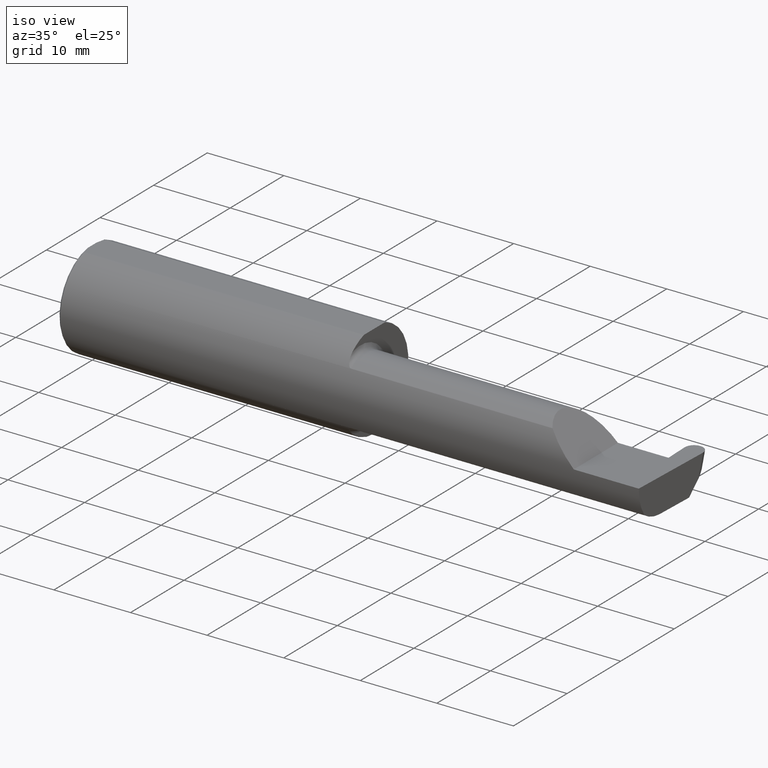
[diagram: clean part render]
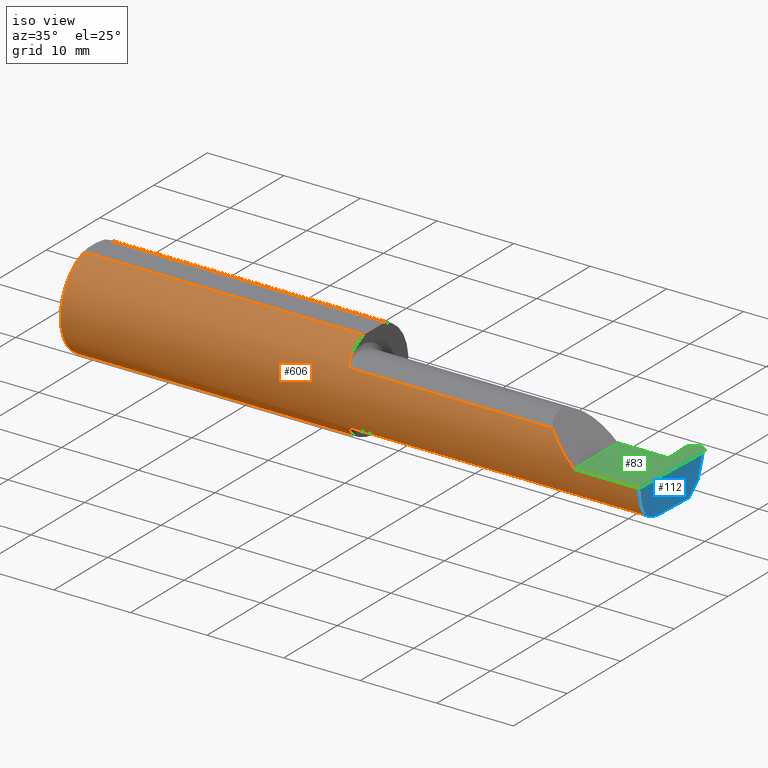
[diagram: same view with three faces highlighted in distinct colors, each labeled with its STEP entity id]
A machine part, iso view with three faces highlighted in distinct colors.
Their STEP definitions:

[orange] entity #606 — the highlighted cylindrical surface (partial cylindrical patch) has radius 6.3462 mm, axis along (-1, -0, -0).
#12 = ORIENTED_EDGE ( 'NONE', *, *, #587, .F. ) ;
#18 = CARTESIAN_POINT ( 'NONE',  ( 2.511704467739031887, -0.2080850024789287211, 0.1382955322609671911 ) ) ;
#21 = ORIENTED_EDGE ( 'NONE', *, *, #38, .F. ) ;
#25 = LINE ( 'NONE', #464, #70 ) ;
#28 = CARTESIAN_POINT ( 'NONE',  ( 1.458182335268384699, -0.1972192205116130581, 0.1535061413537211483 ) ) ;
#34 = CARTESIAN_POINT ( 'NONE',  ( 1.468876997637615034, -0.2068363917296599241, 0.1401586554522231964 ) ) ;
#37 = CARTESIAN_POINT ( 'NONE',  ( 1.452968662030528879, -0.1849684355203377317, 0.1680843977756269203 ) ) ;
#38 = EDGE_CURVE ( 'NONE', #536, #81, #191, .T. ) ;
#42 = CARTESIAN_POINT ( 'NONE',  ( 1.450000000000000178, -0.07650098038587530014, 0.2378499999999998671 ) ) ;
#48 = EDGE_CURVE ( 'NONE', #122, #702, #225, .T. ) ;
#50 = CARTESIAN_POINT ( 'NONE',  ( 2.511704467739031887, -0.2080850024789287211, 0.1382955322609671911 ) ) ;
#55 = DIRECTION ( 'NONE',  ( 0.000000000000000000, 0.000000000000000000, -1.000000000000000000 ) ) ;
#70 = VECTOR ( 'NONE', #566, 39.37007874015748143 ) ;
#73 = AXIS2_PLACEMENT_3D ( 'NONE', #370, #316, #89 ) ;
#78 = VERTEX_POINT ( 'NONE', #421 ) ;
#81 = VERTEX_POINT ( 'NONE', #484 ) ;
#85 = AXIS2_PLACEMENT_3D ( 'NONE', #646, #271, #55 ) ;
#86 = CARTESIAN_POINT ( 'NONE',  ( 1.451849548162864600, -0.1805300287242672663, 0.1728462070311781174 ) ) ;
#89 = DIRECTION ( 'NONE',  ( 0.000000000000000000, 0.000000000000000000, 1.000000000000000000 ) ) ;
#92 = EDGE_CURVE ( 'NONE', #351, #78, #182, .T. ) ;
#93 = CARTESIAN_POINT ( 'NONE',  ( 1.456159563508734101, -0.1933019864360847606, 0.1584298865564833514 ) ) ;
#97 = VERTEX_POINT ( 'NONE', #106 ) ;
#106 = CARTESIAN_POINT ( 'NONE',  ( 2.983360130692194634, -0.2080850024789288044, -0.1382955322609671633 ) ) ;
#114 = CARTESIAN_POINT ( 'NONE',  ( 2.190421435000000194, -0.2080850024789288044, -0.1382955322609671633 ) ) ;
#116 = CARTESIAN_POINT ( 'NONE',  ( 2.650000000000000355, -0.2498499999999999610, 4.286263797015729199E-17 ) ) ;
#122 = VERTEX_POINT ( 'NONE', #594 ) ;
#124 = VERTEX_POINT ( 'NONE', #42 ) ;
#125 = DIRECTION ( 'NONE',  ( 1.000000000000000000, 0.000000000000000000, 0.000000000000000000 ) ) ;
#126 = CARTESIAN_POINT ( 'NONE',  ( 1.471700027347579098, -0.2077785947292767055, -0.1387580622202827518 ) ) ;
#131 = EDGE_CURVE ( 'NONE', #351, #124, #281, .T. ) ;
#132 = VECTOR ( 'NONE', #405, 39.37007874015748143 ) ;
#144 = CARTESIAN_POINT ( 'NONE',  ( 1.450000000000000178, 0.000000000000000000, 0.000000000000000000 ) ) ;
#148 = DIRECTION ( 'NONE',  ( 0.000000000000000000, 1.000000000000000000, 0.000000000000000000 ) ) ;
#152 = ORIENTED_EDGE ( 'NONE', *, *, #347, .T. ) ;
#166 = ORIENTED_EDGE ( 'NONE', *, *, #626, .T. ) ;
#167 = CARTESIAN_POINT ( 'NONE',  ( 1.450000000000000178, -0.1616050818046603221, -0.1905487340154980724 ) ) ;
#178 = CARTESIAN_POINT ( 'NONE',  ( 1.467611663768900510, -0.2061921161193828456, -0.1411075319999379185 ) ) ;
#180 = LINE ( 'NONE', #344, #132 ) ;
#182 = CIRCLE ( 'NONE', #85, 0.2498499999999999888 ) ;
#188 = CARTESIAN_POINT ( 'NONE',  ( 1.467647060162628359, -0.2062109266231180460, 0.1410799729252292800 ) ) ;
#191 = LINE ( 'NONE', #529, #249 ) ;
#196 = CYLINDRICAL_SURFACE ( 'NONE', #73, 0.2498499999999999888 ) ;
#197 = EDGE_CURVE ( 'NONE', #97, #384, #589, .T. ) ;
#199 = CARTESIAN_POINT ( 'NONE',  ( 2.650000000000000355, -0.2498499999999999610, 4.286263797015729199E-17 ) ) ;
#205 = DIRECTION ( 'NONE',  ( 1.000000000000000000, 0.000000000000000000, 0.000000000000000000 ) ) ;
#210 = ORIENTED_EDGE ( 'NONE', *, *, #488, .T. ) ;
#225 = B_SPLINE_CURVE_WITH_KNOTS ( 'NONE', 3,
 ( #411, #579, #522, #86, #37, #93, #28, #254, #415, #188, #34, #689, #633, #259 ),
 .UNSPECIFIED., .F., .F.,
 ( 4, 2, 2, 2, 2, 2, 4 ),
 ( 0.0003834465838148137275, 0.0008781406165086571864, 0.001372834649202500645, 0.001867528681896344104, 0.002114875698243270496, 0.002238549206416740739, 0.002362222714590210982 ),
 .UNSPECIFIED. ) ;
#237 = CARTESIAN_POINT ( 'NONE',  ( 1.458176740666625282, -0.1972027065478072216, -0.1535263573771915302 ) ) ;
#249 = VECTOR ( 'NONE', #367, 39.37007874015748143 ) ;
#254 = CARTESIAN_POINT ( 'NONE',  ( 1.462616400345755574, -0.2024684335577101868, 0.1464246884265639759 ) ) ;
#258 = CARTESIAN_POINT ( 'NONE',  ( 2.983451391416268805, -0.2498499999999999610, -0.04956584089959722994 ) ) ;
#259 = CARTESIAN_POINT ( 'NONE',  ( 1.474999999999999867, -0.2080850024789288877, 0.1382955322609669691 ) ) ;
#260 = AXIS2_PLACEMENT_3D ( 'NONE', #381, #427, #148 ) ;
#271 = DIRECTION ( 'NONE',  ( 1.000000000000000000, 0.000000000000000000, 0.000000000000000000 ) ) ;
#275 = CARTESIAN_POINT ( 'NONE',  ( 1.474999999999999867, -0.2080850024789288877, -0.1382955322609669691 ) ) ;
#279 = CARTESIAN_POINT ( 'NONE',  ( 2.552984868485331571, -0.2355204011147991605, 0.09701513151466779894 ) ) ;
#281 = LINE ( 'NONE', #599, #645 ) ;
#289 = B_SPLINE_CURVE_WITH_KNOTS ( 'NONE', 3,
 ( #448, #462, #126, #680, #178, #342, #555, #237, #454, #673, #398, #167 ),
 .UNSPECIFIED., .F., .F.,
 ( 4, 2, 2, 2, 2, 4 ),
 ( 1.964491429041408350E-07, 0.0001260981470478398584, 0.0002519998449527755370, 0.0005038032407626330707, 0.001007410032382347271, 0.002014623615621782392 ),
 .UNSPECIFIED. ) ;
#290 = ORIENTED_EDGE ( 'NONE', *, *, #294, .F. ) ;
#294 = EDGE_CURVE ( 'NONE', #384, #388, #289, .T. ) ;
#306 = CIRCLE ( 'NONE', #571, 0.2498499999999999888 ) ;
#314 = CARTESIAN_POINT ( 'NONE',  ( 2.984317093749864647, -0.2498499999999999888, 0.000000000000000000 ) ) ;
#316 = DIRECTION ( 'NONE',  ( -1.000000000000000000, -0.000000000000000000, -0.000000000000000000 ) ) ;
#341 = CARTESIAN_POINT ( 'NONE',  ( 0.009999999999999927350, -0.07650098038587520299, 0.2378499999999998671 ) ) ;
#342 = CARTESIAN_POINT ( 'NONE',  ( 1.464302603425052807, -0.2041009206016211885, -0.1441313430770041759 ) ) ;
#344 = CARTESIAN_POINT ( 'NONE',  ( 2.190421435000000194, -0.2080850024789288044, 0.1382955322609671633 ) ) ;
#347 = EDGE_CURVE ( 'NONE', #687, #455, #533, .T. ) ;
#351 = VERTEX_POINT ( 'NONE', #341 ) ;
#367 = DIRECTION ( 'NONE',  ( -1.000000000000000000, -0.000000000000000000, -0.000000000000000000 ) ) ;
#370 = CARTESIAN_POINT ( 'NONE',  ( 0.000000000000000000, 0.000000000000000000, 0.000000000000000000 ) ) ;
#372 = VECTOR ( 'NONE', #534, 39.37007874015748143 ) ;
#376 = CARTESIAN_POINT ( 'NONE',  ( 2.984317093749864647, -0.2498499999999999888, 0.000000000000000000 ) ) ;
#381 = CARTESIAN_POINT ( 'NONE',  ( 1.450000000000000178, 0.000000000000000000, 0.000000000000000000 ) ) ;
#384 = VERTEX_POINT ( 'NONE', #275 ) ;
#388 = VERTEX_POINT ( 'NONE', #485 ) ;
#396 = ORIENTED_EDGE ( 'NONE', *, *, #48, .F. ) ;
#398 = CARTESIAN_POINT ( 'NONE',  ( 1.450000000000000178, -0.1716188362992554783, -0.1820560320165480750 ) ) ;
#400 = ORIENTED_EDGE ( 'NONE', *, *, #403, .F. ) ;
#403 = EDGE_CURVE ( 'NONE', #388, #536, #569, .T. ) ;
#404 = VERTEX_POINT ( 'NONE', #376 ) ;
#405 = DIRECTION ( 'NONE',  ( 1.000000000000000000, -1.172794833305166028E-17, 0.000000000000000000 ) ) ;
#407 = ORIENTED_EDGE ( 'NONE', *, *, #131, .F. ) ;
#411 = CARTESIAN_POINT ( 'NONE',  ( 1.450000000000000178, -0.1616050818046603221, 0.1905487340154980724 ) ) ;
#413 = AXIS2_PLACEMENT_3D ( 'NONE', #144, #644, #414 ) ;
#414 = DIRECTION ( 'NONE',  ( 0.000000000000000000, 1.000000000000000000, 0.000000000000000000 ) ) ;
#415 = CARTESIAN_POINT ( 'NONE',  ( 1.464343523383978996, -0.2041337200786082218, 0.1440846171672514331 ) ) ;
#418 = ORIENTED_EDGE ( 'NONE', *, *, #629, .F. ) ;
#421 = CARTESIAN_POINT ( 'NONE',  ( 0.009999999999999927350, 0.000000000000000000, -0.2498499999999999888 ) ) ;
#427 = DIRECTION ( 'NONE',  ( 1.000000000000000000, -1.172794833305166028E-17, 0.000000000000000000 ) ) ;
#448 = CARTESIAN_POINT ( 'NONE',  ( 1.474999999999999867, -0.2080850024789288877, -0.1382955322609669691 ) ) ;
#454 = CARTESIAN_POINT ( 'NONE',  ( 1.456147634408387903, -0.1932733126899460196, -0.1584637047788198250 ) ) ;
#455 = VERTEX_POINT ( 'NONE', #18 ) ;
#456 = CARTESIAN_POINT ( 'NONE',  ( 0.009999999999999927350, 0.000000000000000000, 0.000000000000000000 ) ) ;
#462 = CARTESIAN_POINT ( 'NONE',  ( 1.473318040126429640, -0.2080850024789288877, -0.1382955322609669968 ) ) ;
#464 = CARTESIAN_POINT ( 'NONE',  ( 4.499279347985562423E-32, -0.2498499999999999610, 3.673940397442054938E-16 ) ) ;
#479 = EDGE_LOOP ( 'NONE', ( #548, #166, #210, #152, #12, #396, #418, #407, #527, #553, #21, #400, #290 ) ) ;
#484 = CARTESIAN_POINT ( 'NONE',  ( 0.009999999999999927350, 0.07650098038587520299, 0.2378499999999998671 ) ) ;
#485 = CARTESIAN_POINT ( 'NONE',  ( 1.450000000000000178, -0.1616050818046603221, -0.1905487340154980724 ) ) ;
#488 = EDGE_CURVE ( 'NONE', #404, #687, #25, .T. ) ;
#510 = CIRCLE ( 'NONE', #413, 0.2498499999999999888 ) ;
#518 = EDGE_CURVE ( 'NONE', #78, #81, #306, .T. ) ;
#520 = CARTESIAN_POINT ( 'NONE',  ( 1.474999999999999867, -0.2080850024789288877, 0.1382955322609669691 ) ) ;
#522 = CARTESIAN_POINT ( 'NONE',  ( 1.450367168219774072, -0.1713400252854602734, 0.1819601557798506686 ) ) ;
#527 = ORIENTED_EDGE ( 'NONE', *, *, #92, .T. ) ;
#529 = CARTESIAN_POINT ( 'NONE',  ( 0.000000000000000000, 0.07650098038587520299, 0.2378499999999998671 ) ) ;
#533 =( BOUNDED_CURVE ( )  B_SPLINE_CURVE ( 3, ( #116, #662, #279, #50 ),
 .UNSPECIFIED., .F., .F. ) 
 B_SPLINE_CURVE_WITH_KNOTS ( ( 4, 4 ),
 ( 4.712388980384689674, 5.298966915116348986 ),
 .UNSPECIFIED. ) 
 CURVE ( )  GEOMETRIC_REPRESENTATION_ITEM ( )  RATIONAL_B_SPLINE_CURVE ( ( 1.000000000000000000, 0.9715321379117536349, 0.9715321379117536349, 1.000000000000000000 ) ) 
 REPRESENTATION_ITEM ( '' )  );
#534 = DIRECTION ( 'NONE',  ( -1.000000000000000000, 1.172794833305166028E-17, -0.000000000000000000 ) ) ;
#536 = VERTEX_POINT ( 'NONE', #683 ) ;
#548 = ORIENTED_EDGE ( 'NONE', *, *, #197, .F. ) ;
#553 = ORIENTED_EDGE ( 'NONE', *, *, #518, .T. ) ;
#555 = CARTESIAN_POINT ( 'NONE',  ( 1.462579853086619419, -0.2024300470081734638, -0.1464774911482686348 ) ) ;
#558 = FACE_OUTER_BOUND ( 'NONE', #479, .T. ) ;
#566 = DIRECTION ( 'NONE',  ( -1.000000000000000000, -0.000000000000000000, -0.000000000000000000 ) ) ;
#569 = CIRCLE ( 'NONE', #260, 0.2498499999999999888 ) ;
#571 = AXIS2_PLACEMENT_3D ( 'NONE', #456, #125, #675 ) ;
#579 = CARTESIAN_POINT ( 'NONE',  ( 1.450000000000000622, -0.1665641037263008994, 0.1863429692936362791 ) ) ;
#587 = EDGE_CURVE ( 'NONE', #702, #455, #180, .T. ) ;
#589 = LINE ( 'NONE', #114, #372 ) ;
#594 = CARTESIAN_POINT ( 'NONE',  ( 1.450000000000000178, -0.1616050818046603221, 0.1905487340154980724 ) ) ;
#599 = CARTESIAN_POINT ( 'NONE',  ( 0.000000000000000000, -0.07650098038587520299, 0.2378499999999998671 ) ) ;
#606 = ADVANCED_FACE ( 'NONE', ( #558 ), #196, .T. ) ;
#626 = EDGE_CURVE ( 'NONE', #97, #404, #658, .T. ) ;
#629 = EDGE_CURVE ( 'NONE', #124, #122, #510, .T. ) ;
#632 = CARTESIAN_POINT ( 'NONE',  ( 2.983123056744215962, -0.2355204011147991328, -0.09701513151466793772 ) ) ;
#633 = CARTESIAN_POINT ( 'NONE',  ( 1.473329956043141875, -0.2080850024798588105, 0.1382955322595676995 ) ) ;
#634 = CARTESIAN_POINT ( 'NONE',  ( 2.983360130692194634, -0.2080850024789288044, -0.1382955322609671633 ) ) ;
#644 = DIRECTION ( 'NONE',  ( 1.000000000000000000, -1.172794833305166028E-17, 0.000000000000000000 ) ) ;
#645 = VECTOR ( 'NONE', #205, 39.37007874015748143 ) ;
#646 = CARTESIAN_POINT ( 'NONE',  ( 0.009999999999999927350, 0.000000000000000000, 0.000000000000000000 ) ) ;
#658 =( BOUNDED_CURVE ( )  B_SPLINE_CURVE ( 3, ( #634, #632, #258, #314 ),
 .UNSPECIFIED., .F., .F. ) 
 B_SPLINE_CURVE_WITH_KNOTS ( ( 4, 4 ),
 ( 6.160376845738969820, 6.746954780470629132 ),
 .UNSPECIFIED. ) 
 CURVE ( )  GEOMETRIC_REPRESENTATION_ITEM ( )  RATIONAL_B_SPLINE_CURVE ( ( 1.000000000000000000, 0.9715321379117536349, 0.9715321379117536349, 1.000000000000000000 ) ) 
 REPRESENTATION_ITEM ( '' )  );
#662 = CARTESIAN_POINT ( 'NONE',  ( 2.600434159100402987, -0.2498499999999999610, 0.04956584089959713973 ) ) ;
#673 = CARTESIAN_POINT ( 'NONE',  ( 1.451385488563270432, -0.1808287530430325030, -0.1728790649396287904 ) ) ;
#675 = DIRECTION ( 'NONE',  ( 0.000000000000000000, 0.000000000000000000, -1.000000000000000000 ) ) ;
#680 = CARTESIAN_POINT ( 'NONE',  ( 1.468863362722771182, -0.2068301641248770084, -0.1401678546132362480 ) ) ;
#683 = CARTESIAN_POINT ( 'NONE',  ( 1.450000000000000178, 0.07650098038587520299, 0.2378499999999998671 ) ) ;
#687 = VERTEX_POINT ( 'NONE', #199 ) ;
#689 = CARTESIAN_POINT ( 'NONE',  ( 1.471718393013768722, -0.2077830475237239516, 0.1387513848711939557 ) ) ;
#702 = VERTEX_POINT ( 'NONE', #520 ) ;

[blue] entity #112 — the highlighted planar face has unit normal (-0.9992, 0.0349, 0.0175).
#2 = VECTOR ( 'NONE', #424, 39.37007874015748143 ) ;
#3 = DIRECTION ( 'NONE',  ( -0.9992386149554828290, 0.03489418134010630057, 0.01745240643728358798 ) ) ;
#14 = CARTESIAN_POINT ( 'NONE',  ( 2.999933069103034811, 0.1971629156477839040, 0.0003401160246315201928 ) ) ;
#62 = VERTEX_POINT ( 'NONE', #483 ) ;
#65 = EDGE_CURVE ( 'NONE', #97, #674, #474, .T. ) ;
#80 = LINE ( 'NONE', #14, #203 ) ;
#97 = VERTEX_POINT ( 'NONE', #106 ) ;
#99 = DIRECTION ( 'NONE',  ( -0.03489949670249360009, -0.9993908270190959842, 1.222058880457094394E-16 ) ) ;
#106 = CARTESIAN_POINT ( 'NONE',  ( 2.983360130692194634, -0.2080850024789288044, -0.1382955322609671633 ) ) ;
#112 = ADVANCED_FACE ( 'NONE', ( #391 ), #547, .F. ) ;
#134 = CARTESIAN_POINT ( 'NONE',  ( 2.993681016992925770, 0.1058243371481696476, -0.1750000000000001277 ) ) ;
#135 = EDGE_CURVE ( 'NONE', #62, #691, #498, .T. ) ;
#143 = CARTESIAN_POINT ( 'NONE',  ( 2.983360130692194634, -0.2080850024789288044, -0.1382955322609671633 ) ) ;
#154 = CARTESIAN_POINT ( 'NONE',  ( 2.986463790105515770, -0.1008500000000001617, -0.1750000000000000722 ) ) ;
#158 = CARTESIAN_POINT ( 'NONE',  ( 2.986970135337519761, -0.08635016968773891188, -0.1750000000000000722 ) ) ;
#173 = ORIENTED_EDGE ( 'NONE', *, *, #135, .F. ) ;
#174 = LINE ( 'NONE', #349, #451 ) ;
#176 = EDGE_LOOP ( 'NONE', ( #173, #449, #500, #333, #610, #286 ) ) ;
#203 = VECTOR ( 'NONE', #240, 39.37007874015748854 ) ;
#240 = DIRECTION ( 'NONE',  ( 0.02590004391968220299, 0.2587322210431823866, 0.9656017944882974158 ) ) ;
#251 = CARTESIAN_POINT ( 'NONE',  ( 2.984022185481226774, -0.1771157075472507281, -0.1623092683844333528 ) ) ;
#257 = AXIS2_PLACEMENT_3D ( 'NONE', #609, #3, #328 ) ;
#258 = CARTESIAN_POINT ( 'NONE',  ( 2.983451391416268805, -0.2498499999999999610, -0.04956584089959722994 ) ) ;
#286 = ORIENTED_EDGE ( 'NONE', *, *, #410, .F. ) ;
#314 = CARTESIAN_POINT ( 'NONE',  ( 2.984317093749864647, -0.2498499999999999888, 0.000000000000000000 ) ) ;
#327 = CARTESIAN_POINT ( 'NONE',  ( 2.999923946274115405, 0.1970717818336510108, 0.000000000000000000 ) ) ;
#328 = DIRECTION ( 'NONE',  ( -0.03489949670249360009, -0.9993908270190959842, 0.000000000000000000 ) ) ;
#332 = CARTESIAN_POINT ( 'NONE',  ( 2.996327343641414398, 0.1563397935939803141, -0.1244845435541888923 ) ) ;
#333 = ORIENTED_EDGE ( 'NONE', *, *, #626, .F. ) ;
#349 = CARTESIAN_POINT ( 'NONE',  ( 2.999971321010222347, 0.1984284167760241857, 0.000000000000000000 ) ) ;
#361 = VERTEX_POINT ( 'NONE', #327 ) ;
#376 = CARTESIAN_POINT ( 'NONE',  ( 2.984317093749864647, -0.2498499999999999888, 0.000000000000000000 ) ) ;
#391 = FACE_OUTER_BOUND ( 'NONE', #176, .T. ) ;
#404 = VERTEX_POINT ( 'NONE', #376 ) ;
#410 = EDGE_CURVE ( 'NONE', #691, #674, #592, .T. ) ;
#424 = DIRECTION ( 'NONE',  ( -0.03701744261649772549, -0.7066221440565400025, -0.7066221440565478851 ) ) ;
#449 = ORIENTED_EDGE ( 'NONE', *, *, #494, .T. ) ;
#451 = VECTOR ( 'NONE', #453, 39.37007874015748143 ) ;
#453 = DIRECTION ( 'NONE',  ( -0.03489949670249360703, -0.9993908270190959842, 0.000000000000000000 ) ) ;
#474 =( BOUNDED_CURVE ( )  B_SPLINE_CURVE ( 3, ( #143, #251, #697, #154 ),
 .UNSPECIFIED., .F., .T. ) 
 B_SPLINE_CURVE_WITH_KNOTS ( ( 4, 4 ),
 ( 0.4474640105399505519, 1.107026853503853880 ),
 .UNSPECIFIED. ) 
 CURVE ( )  GEOMETRIC_REPRESENTATION_ITEM ( )  RATIONAL_B_SPLINE_CURVE ( ( 1.000000000000000000, 0.9640754331822833922, 0.9640754331822833922, 1.000000000000000000 ) ) 
 REPRESENTATION_ITEM ( '' )  );
#483 = CARTESIAN_POINT ( 'NONE',  ( 2.996855212037246918, 0.1664162189566759653, -0.1144081181914931300 ) ) ;
#494 = EDGE_CURVE ( 'NONE', #62, #361, #80, .T. ) ;
#498 = LINE ( 'NONE', #332, #2 ) ;
#500 = ORIENTED_EDGE ( 'NONE', *, *, #580, .T. ) ;
#528 = CARTESIAN_POINT ( 'NONE',  ( 2.986463790105515770, -0.1008500000000001617, -0.1750000000000000722 ) ) ;
#547 = PLANE ( 'NONE',  #257 ) ;
#580 = EDGE_CURVE ( 'NONE', #361, #404, #174, .T. ) ;
#592 = LINE ( 'NONE', #158, #664 ) ;
#609 = CARTESIAN_POINT ( 'NONE',  ( 2.999971321010222347, 0.1984284167760241857, 0.000000000000000000 ) ) ;
#610 = ORIENTED_EDGE ( 'NONE', *, *, #65, .T. ) ;
#626 = EDGE_CURVE ( 'NONE', #97, #404, #658, .T. ) ;
#632 = CARTESIAN_POINT ( 'NONE',  ( 2.983123056744215962, -0.2355204011147991328, -0.09701513151466793772 ) ) ;
#634 = CARTESIAN_POINT ( 'NONE',  ( 2.983360130692194634, -0.2080850024789288044, -0.1382955322609671633 ) ) ;
#658 =( BOUNDED_CURVE ( )  B_SPLINE_CURVE ( 3, ( #634, #632, #258, #314 ),
 .UNSPECIFIED., .F., .F. ) 
 B_SPLINE_CURVE_WITH_KNOTS ( ( 4, 4 ),
 ( 6.160376845738969820, 6.746954780470629132 ),
 .UNSPECIFIED. ) 
 CURVE ( )  GEOMETRIC_REPRESENTATION_ITEM ( )  RATIONAL_B_SPLINE_CURVE ( ( 1.000000000000000000, 0.9715321379117536349, 0.9715321379117536349, 1.000000000000000000 ) ) 
 REPRESENTATION_ITEM ( '' )  );
#664 = VECTOR ( 'NONE', #99, 39.37007874015748854 ) ;
#674 = VERTEX_POINT ( 'NONE', #528 ) ;
#691 = VERTEX_POINT ( 'NONE', #134 ) ;
#697 = CARTESIAN_POINT ( 'NONE',  ( 2.985095289412896147, -0.1400387324517230470, -0.1750000000000001832 ) ) ;

[green] entity #83 — the highlighted planar face has unit normal (-0, 0, -1).
#23 = CARTESIAN_POINT ( 'NONE',  ( 2.650000000000000355, -0.2500000000000000555, 4.286263797015729199E-17 ) ) ;
#25 = LINE ( 'NONE', #464, #70 ) ;
#32 = EDGE_CURVE ( 'NONE', #670, #583, #635, .T. ) ;
#41 = VECTOR ( 'NONE', #177, 39.37007874015748143 ) ;
#69 = CARTESIAN_POINT ( 'NONE',  ( 2.952578855735824348, 0.2471499999999999808, 0.000000000000000000 ) ) ;
#70 = VECTOR ( 'NONE', #566, 39.37007874015748143 ) ;
#72 = CARTESIAN_POINT ( 'NONE',  ( -3.937007874019685528E-05, 0.2471499999999999808, 0.000000000000000000 ) ) ;
#82 = CARTESIAN_POINT ( 'NONE',  ( 2.952578855735824348, 0.2471499999999999808, 0.000000000000000000 ) ) ;
#83 = ADVANCED_FACE ( 'NONE', ( #217 ), #383, .F. ) ;
#96 = CARTESIAN_POINT ( 'NONE',  ( 3.000000000000000444, -0.2500000000000000555, 0.000000000000000000 ) ) ;
#108 = CARTESIAN_POINT ( 'NONE',  ( 2.905918923725884451, 0.1970717818336510108, 0.000000000000000000 ) ) ;
#110 = CARTESIAN_POINT ( 'NONE',  ( 2.905871548989777509, 0.1984284167760241857, 0.000000000000000000 ) ) ;
#115 = VERTEX_POINT ( 'NONE', #324 ) ;
#133 = ORIENTED_EDGE ( 'NONE', *, *, #577, .F. ) ;
#139 = VECTOR ( 'NONE', #163, 39.37007874015748143 ) ;
#150 = EDGE_CURVE ( 'NONE', #583, #343, #543, .T. ) ;
#157 = AXIS2_PLACEMENT_3D ( 'NONE', #96, #651, #336 ) ;
#163 = DIRECTION ( 'NONE',  ( 1.000000000000000000, -1.172794833305166028E-17, 0.000000000000000000 ) ) ;
#174 = LINE ( 'NONE', #349, #451 ) ;
#177 = DIRECTION ( 'NONE',  ( 1.000000000000000000, -0.000000000000000000, -0.000000000000000000 ) ) ;
#199 = CARTESIAN_POINT ( 'NONE',  ( 2.650000000000000355, -0.2498499999999999610, 4.286263797015729199E-17 ) ) ;
#207 = VECTOR ( 'NONE', #221, 39.37007874015748854 ) ;
#212 = EDGE_CURVE ( 'NONE', #613, #343, #469, .T. ) ;
#217 = FACE_OUTER_BOUND ( 'NONE', #567, .T. ) ;
#218 = ORIENTED_EDGE ( 'NONE', *, *, #32, .F. ) ;
#221 = DIRECTION ( 'NONE',  ( -0.03489949670249305885, 0.9993908270190959842, -0.000000000000000000 ) ) ;
#243 = LINE ( 'NONE', #23, #379 ) ;
#246 = VERTEX_POINT ( 'NONE', #563 ) ;
#265 = CARTESIAN_POINT ( 'NONE',  ( 2.981446984665954592, 0.2471499999999999253, 5.045648196544941064E-18 ) ) ;
#292 = CARTESIAN_POINT ( 'NONE',  ( 2.904900810685382861, 0.2262267247321106678, 1.148125750367493843E-17 ) ) ;
#297 = VECTOR ( 'NONE', #576, 39.37007874015748143 ) ;
#303 = ORIENTED_EDGE ( 'NONE', *, *, #580, .F. ) ;
#308 = CARTESIAN_POINT ( 'NONE',  ( 2.899170153812740125, 0.07414999999999995206, 0.000000000000000000 ) ) ;
#324 = CARTESIAN_POINT ( 'NONE',  ( 2.650000000000000355, 0.07414999999999995206, 1.898202538678394994E-16 ) ) ;
#327 = CARTESIAN_POINT ( 'NONE',  ( 2.999923946274115405, 0.1970717818336510108, 0.000000000000000000 ) ) ;
#336 = DIRECTION ( 'NONE',  ( -1.000000000000000000, 0.000000000000000000, 1.224646799147351975E-16 ) ) ;
#343 = VERTEX_POINT ( 'NONE', #108 ) ;
#349 = CARTESIAN_POINT ( 'NONE',  ( 2.999971321010222347, 0.1984284167760241857, 0.000000000000000000 ) ) ;
#353 = LINE ( 'NONE', #72, #41 ) ;
#356 = EDGE_CURVE ( 'NONE', #361, #246, #539, .T. ) ;
#361 = VERTEX_POINT ( 'NONE', #327 ) ;
#364 = EDGE_CURVE ( 'NONE', #115, #670, #440, .T. ) ;
#376 = CARTESIAN_POINT ( 'NONE',  ( 2.984317093749864647, -0.2498499999999999888, 0.000000000000000000 ) ) ;
#379 = VECTOR ( 'NONE', #514, 39.37007874015748143 ) ;
#383 = PLANE ( 'NONE',  #157 ) ;
#392 = ORIENTED_EDGE ( 'NONE', *, *, #481, .F. ) ;
#404 = VERTEX_POINT ( 'NONE', #376 ) ;
#440 = LINE ( 'NONE', #446, #139 ) ;
#446 = CARTESIAN_POINT ( 'NONE',  ( 1.450000000000000178, 0.07414999999999996594, 1.898202538678394994E-16 ) ) ;
#451 = VECTOR ( 'NONE', #453, 39.37007874015748143 ) ;
#453 = DIRECTION ( 'NONE',  ( -0.03489949670249360703, -0.9993908270190959842, 0.000000000000000000 ) ) ;
#459 = CARTESIAN_POINT ( 'NONE',  ( 2.910211446934811264, 0.07414999999999995206, 0.000000000000000000 ) ) ;
#464 = CARTESIAN_POINT ( 'NONE',  ( 4.499279347985562423E-32, -0.2498499999999999610, 3.673940397442054938E-16 ) ) ;
#469 =( BOUNDED_CURVE ( )  B_SPLINE_CURVE ( 3, ( #69, #559, #292, #509 ),
 .UNSPECIFIED., .F., .F. ) 
 B_SPLINE_CURVE_WITH_KNOTS ( ( 4, 4 ),
 ( 3.045231736429750757, 4.645220385064936508 ),
 .UNSPECIFIED. ) 
 CURVE ( )  GEOMETRIC_REPRESENTATION_ITEM ( )  RATIONAL_B_SPLINE_CURVE ( ( 1.000000000000000000, 0.7978071872141923038, 0.7978071872141923038, 1.000000000000000000 ) ) 
 REPRESENTATION_ITEM ( '' )  );
#481 = EDGE_CURVE ( 'NONE', #687, #115, #243, .T. ) ;
#488 = EDGE_CURVE ( 'NONE', #404, #687, #25, .T. ) ;
#495 = ORIENTED_EDGE ( 'NONE', *, *, #488, .F. ) ;
#507 = ORIENTED_EDGE ( 'NONE', *, *, #356, .T. ) ;
#509 = CARTESIAN_POINT ( 'NONE',  ( 2.905918923725884451, 0.1970717818336510108, 0.000000000000000000 ) ) ;
#514 = DIRECTION ( 'NONE',  ( -0.000000000000000000, 1.000000000000000000, -0.000000000000000000 ) ) ;
#539 =( BOUNDED_CURVE ( )  B_SPLINE_CURVE ( 3, ( #546, #598, #265, #700 ),
 .UNSPECIFIED., .F., .F. ) 
 B_SPLINE_CURVE_WITH_KNOTS ( ( 4, 4 ),
 ( 1.637964922114649058, 3.237953570749835031 ),
 .UNSPECIFIED. ) 
 CURVE ( )  GEOMETRIC_REPRESENTATION_ITEM ( )  RATIONAL_B_SPLINE_CURVE ( ( 1.000000000000000000, 0.7978071872141923038, 0.7978071872141923038, 1.000000000000000000 ) ) 
 REPRESENTATION_ITEM ( '' )  );
#543 = LINE ( 'NONE', #110, #207 ) ;
#546 = CARTESIAN_POINT ( 'NONE',  ( 2.999923946274115405, 0.1970717818336510108, 0.000000000000000000 ) ) ;
#559 = CARTESIAN_POINT ( 'NONE',  ( 2.924395885334045708, 0.2471499999999999253, 9.093799426912671490E-18 ) ) ;
#563 = CARTESIAN_POINT ( 'NONE',  ( 2.953264014264175508, 0.2471499999999999808, 0.000000000000000000 ) ) ;
#566 = DIRECTION ( 'NONE',  ( -1.000000000000000000, -0.000000000000000000, -0.000000000000000000 ) ) ;
#567 = EDGE_LOOP ( 'NONE', ( #133, #692, #625, #218, #682, #392, #495, #303, #507 ) ) ;
#576 = DIRECTION ( 'NONE',  ( 1.000000000000000000, -0.000000000000000000, -0.000000000000000000 ) ) ;
#577 = EDGE_CURVE ( 'NONE', #613, #246, #353, .T. ) ;
#580 = EDGE_CURVE ( 'NONE', #361, #404, #174, .T. ) ;
#583 = VERTEX_POINT ( 'NONE', #459 ) ;
#598 = CARTESIAN_POINT ( 'NONE',  ( 3.000942059314616550, 0.2262267247321106678, 2.658190119782676047E-18 ) ) ;
#613 = VERTEX_POINT ( 'NONE', #82 ) ;
#625 = ORIENTED_EDGE ( 'NONE', *, *, #150, .F. ) ;
#631 = CARTESIAN_POINT ( 'NONE',  ( 2.910211446934811264, 0.07414999999999995206, 0.000000000000000000 ) ) ;
#635 = LINE ( 'NONE', #631, #297 ) ;
#651 = DIRECTION ( 'NONE',  ( -1.224646799147351975E-16, 0.000000000000000000, -1.000000000000000000 ) ) ;
#670 = VERTEX_POINT ( 'NONE', #308 ) ;
#682 = ORIENTED_EDGE ( 'NONE', *, *, #364, .F. ) ;
#687 = VERTEX_POINT ( 'NONE', #199 ) ;
#692 = ORIENTED_EDGE ( 'NONE', *, *, #212, .T. ) ;
#700 = CARTESIAN_POINT ( 'NONE',  ( 2.953264014264175508, 0.2471499999999999808, 0.000000000000000000 ) ) ;